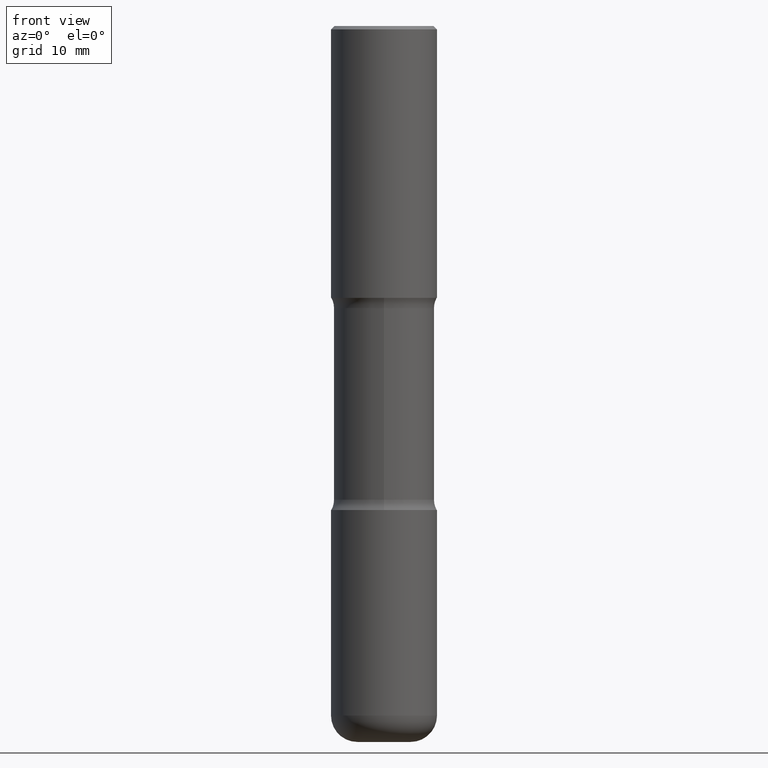
[diagram: clean part render]
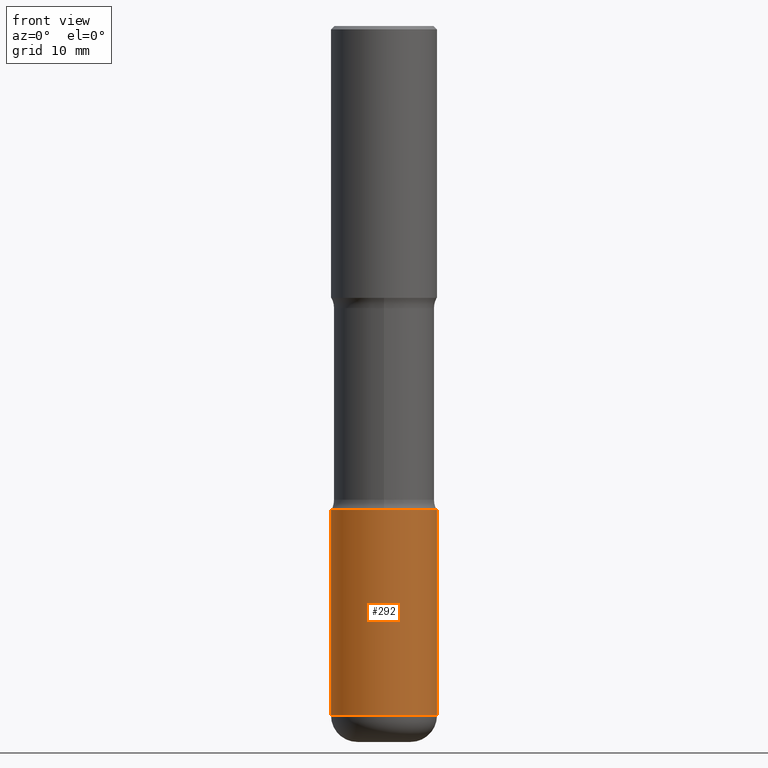
[diagram: same view with one face highlighted and labeled with its STEP entity id]
A machine part, front view. The second image highlights one B-rep face of the part: STEP entity #292.
In plain terms, the highlighted cylindrical surface (partial cylindrical patch) has radius 7.9997 mm, axis along (-0, 0, 1).
Its self-contained STEP definition (entity closure, byte-faithful):
#17 = ORIENTED_EDGE ( 'NONE', *, *, #185, .F. ) ;
#20 = VERTEX_POINT ( 'NONE', #487 ) ;
#27 = FACE_OUTER_BOUND ( 'NONE', #357, .T. ) ;
#50 = CIRCLE ( 'NONE', #188, 0.3149500000000002298 ) ;
#54 = DIRECTION ( 'NONE',  ( 1.000000000000000000, -6.982962677686268288E-15, 0.000000000000000000 ) ) ;
#57 = DIRECTION ( 'NONE',  ( -2.445468806185136877E-29, 3.491481338843145188E-15, 1.000000000000000000 ) ) ;
#80 = CYLINDRICAL_SURFACE ( 'NONE', #124, 0.3149500000000002853 ) ;
#83 = CIRCLE ( 'NONE', #483, 0.3149500000000003408 ) ;
#97 = VECTOR ( 'NONE', #57, 39.37007874015748143 ) ;
#110 = LINE ( 'NONE', #335, #97 ) ;
#124 = AXIS2_PLACEMENT_3D ( 'NONE', #414, #557, #348 ) ;
#146 = EDGE_CURVE ( 'NONE', #20, #538, #537, .T. ) ;
#174 = VERTEX_POINT ( 'NONE', #408 ) ;
#185 = EDGE_CURVE ( 'NONE', #390, #538, #50, .T. ) ;
#188 = AXIS2_PLACEMENT_3D ( 'NONE', #202, #486, #190 ) ;
#190 = DIRECTION ( 'NONE',  ( 1.000000000000000000, -6.982962677686264344E-15, 0.000000000000000000 ) ) ;
#202 = CARTESIAN_POINT ( 'NONE',  ( 7.028277348976083234E-29, -1.003451736783520325E-14, -2.874000000000000554 ) ) ;
#206 = ORIENTED_EDGE ( 'NONE', *, *, #533, .F. ) ;
#243 = CARTESIAN_POINT ( 'NONE',  ( 0.3149500000000002853, -2.199284095337291843E-15, 1.535751875536931531E-29 ) ) ;
#260 = VECTOR ( 'NONE', #332, 39.37007874015748143 ) ;
#292 = ADVANCED_FACE ( 'NONE', ( #27 ), #80, .T. ) ;
#307 = CARTESIAN_POINT ( 'NONE',  ( -0.3149500000000002298, -9.928212378922505958E-15, -2.874000000000000554 ) ) ;
#324 = CARTESIAN_POINT ( 'NONE',  ( 0.3149500000000002298, -1.223380146317249313E-14, -2.874000000000000554 ) ) ;
#332 = DIRECTION ( 'NONE',  ( -2.445468806185136877E-29, 3.491481338843145188E-15, 1.000000000000000000 ) ) ;
#335 = CARTESIAN_POINT ( 'NONE',  ( -0.3149500000000002853, 2.237854346276437562E-15, -1.549218606675783797E-29 ) ) ;
#348 = DIRECTION ( 'NONE',  ( 1.000000000000000000, -6.982962677686267499E-15, 4.876176775795936353E-29 ) ) ;
#357 = EDGE_LOOP ( 'NONE', ( #206, #442, #491, #17 ) ) ;
#390 = VERTEX_POINT ( 'NONE', #307 ) ;
#408 = CARTESIAN_POINT ( 'NONE',  ( -0.3149500000000002298, -1.205976173628624465E-14, -4.095000000000000639 ) ) ;
#414 = CARTESIAN_POINT ( 'NONE',  ( 0.000000000000000000, 0.000000000000000000, 0.000000000000000000 ) ) ;
#424 = EDGE_CURVE ( 'NONE', #174, #20, #83, .T. ) ;
#442 = ORIENTED_EDGE ( 'NONE', *, *, #424, .T. ) ;
#475 = DIRECTION ( 'NONE',  ( -2.445468806185136597E-29, 3.491481338843145583E-15, 1.000000000000000000 ) ) ;
#483 = AXIS2_PLACEMENT_3D ( 'NONE', #516, #475, #54 ) ;
#486 = DIRECTION ( 'NONE',  ( -2.445468806185136597E-29, 3.491481338843145583E-15, 1.000000000000000000 ) ) ;
#487 = CARTESIAN_POINT ( 'NONE',  ( 0.3149500000000002298, -1.649690017789997523E-14, -4.095000000000000639 ) ) ;
#491 = ORIENTED_EDGE ( 'NONE', *, *, #146, .T. ) ;
#516 = CARTESIAN_POINT ( 'NONE',  ( 1.001419476132813495E-28, -1.429761608256268379E-14, -4.095000000000000639 ) ) ;
#533 = EDGE_CURVE ( 'NONE', #174, #390, #110, .T. ) ;
#537 = LINE ( 'NONE', #243, #260 ) ;
#538 = VERTEX_POINT ( 'NONE', #324 ) ;
#557 = DIRECTION ( 'NONE',  ( -2.445468806185136597E-29, 3.491481338843145583E-15, 1.000000000000000000 ) ) ;